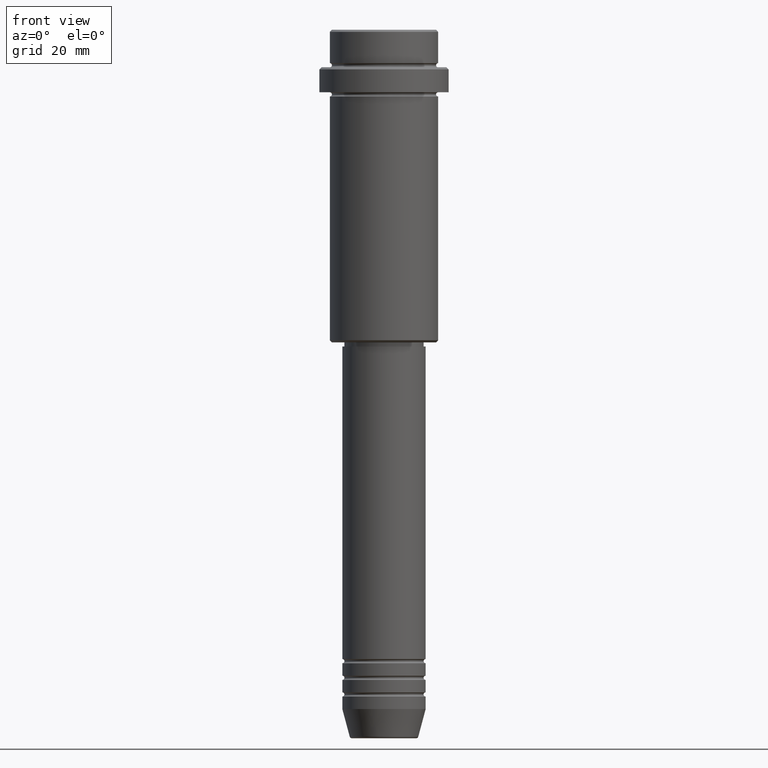
[diagram: clean part render]
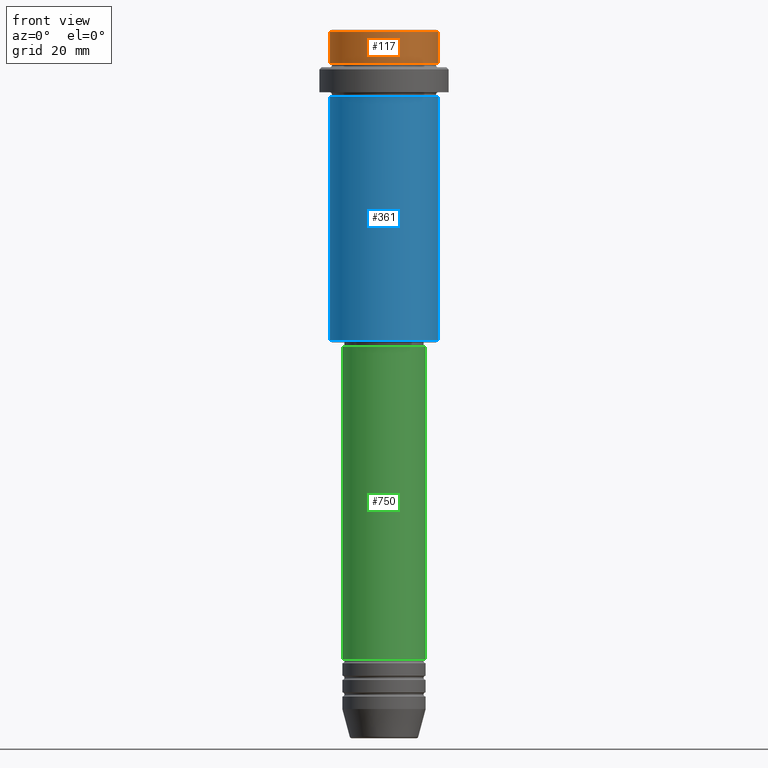
[diagram: same view with three faces highlighted in distinct colors, each labeled with its STEP entity id]
A machine part, front view with three faces highlighted in distinct colors.
Their STEP definitions:

[orange] entity #117 — the highlighted cylindrical surface (partial cylindrical patch) has radius 13 mm, axis along (-0, -0, 1).
#18 = CARTESIAN_POINT ( 'NONE',  ( 12.99999999999999822, 0.000000000000000000, 0.000000000000000000 ) ) ;
#31 = DIRECTION ( 'NONE',  ( -0.000000000000000000, -0.000000000000000000, 1.000000000000000000 ) ) ;
#90 = ORIENTED_EDGE ( 'NONE', *, *, #198, .T. ) ;
#115 = CARTESIAN_POINT ( 'NONE',  ( 0.000000000000000000, 0.000000000000000000, -0.4999999999999483746 ) ) ;
#117 = ADVANCED_FACE ( 'NONE', ( #295 ), #1174, .T. ) ;
#193 = DIRECTION ( 'NONE',  ( 1.000000000000000000, 0.000000000000000000, 0.000000000000000000 ) ) ;
#198 = EDGE_CURVE ( 'NONE', #1146, #933, #409, .T. ) ;
#295 = FACE_OUTER_BOUND ( 'NONE', #569, .T. ) ;
#409 = CIRCLE ( 'NONE', #968, 12.99999999999999822 ) ;
#432 = CARTESIAN_POINT ( 'NONE',  ( -12.99999999999999822, 1.592040838891558898E-15, -7.999999999999998224 ) ) ;
#483 = VERTEX_POINT ( 'NONE', #595 ) ;
#506 = DIRECTION ( 'NONE',  ( -0.000000000000000000, -0.000000000000000000, 1.000000000000000000 ) ) ;
#535 = DIRECTION ( 'NONE',  ( -0.000000000000000000, -0.000000000000000000, 1.000000000000000000 ) ) ;
#569 = EDGE_LOOP ( 'NONE', ( #649, #1130, #924, #90 ) ) ;
#573 = CARTESIAN_POINT ( 'NONE',  ( -12.99999999999999822, 1.592040838891558898E-15, -0.4999999999999483746 ) ) ;
#595 = CARTESIAN_POINT ( 'NONE',  ( 12.99999999999999822, 0.000000000000000000, -7.999999999999998224 ) ) ;
#612 = AXIS2_PLACEMENT_3D ( 'NONE', #955, #733, #193 ) ;
#649 = ORIENTED_EDGE ( 'NONE', *, *, #1270, .F. ) ;
#656 = CARTESIAN_POINT ( 'NONE',  ( -12.99999999999999822, 1.592040838891558898E-15, 0.000000000000000000 ) ) ;
#699 = AXIS2_PLACEMENT_3D ( 'NONE', #834, #506, #742 ) ;
#700 = VECTOR ( 'NONE', #535, 1000.000000000000000 ) ;
#723 = VERTEX_POINT ( 'NONE', #432 ) ;
#733 = DIRECTION ( 'NONE',  ( -0.000000000000000000, -0.000000000000000000, 1.000000000000000000 ) ) ;
#742 = DIRECTION ( 'NONE',  ( 1.000000000000000000, 0.000000000000000000, 0.000000000000000000 ) ) ;
#767 = EDGE_CURVE ( 'NONE', #483, #1146, #1004, .T. ) ;
#834 = CARTESIAN_POINT ( 'NONE',  ( 0.000000000000000000, 0.000000000000000000, -7.999999999999998224 ) ) ;
#924 = ORIENTED_EDGE ( 'NONE', *, *, #767, .T. ) ;
#933 = VERTEX_POINT ( 'NONE', #573 ) ;
#952 = DIRECTION ( 'NONE',  ( 1.000000000000000000, 0.000000000000000000, 0.000000000000000000 ) ) ;
#955 = CARTESIAN_POINT ( 'NONE',  ( 0.000000000000000000, 0.000000000000000000, 0.000000000000000000 ) ) ;
#968 = AXIS2_PLACEMENT_3D ( 'NONE', #115, #1366, #952 ) ;
#1004 = LINE ( 'NONE', #18, #1240 ) ;
#1051 = EDGE_CURVE ( 'NONE', #723, #483, #1194, .T. ) ;
#1130 = ORIENTED_EDGE ( 'NONE', *, *, #1051, .T. ) ;
#1146 = VERTEX_POINT ( 'NONE', #1193 ) ;
#1174 = CYLINDRICAL_SURFACE ( 'NONE', #612, 12.99999999999999822 ) ;
#1193 = CARTESIAN_POINT ( 'NONE',  ( 12.99999999999999822, 0.000000000000000000, -0.4999999999999483746 ) ) ;
#1194 = CIRCLE ( 'NONE', #699, 12.99999999999999822 ) ;
#1240 = VECTOR ( 'NONE', #31, 1000.000000000000000 ) ;
#1270 = EDGE_CURVE ( 'NONE', #723, #933, #1307, .T. ) ;
#1307 = LINE ( 'NONE', #656, #700 ) ;
#1366 = DIRECTION ( 'NONE',  ( 0.000000000000000000, 0.000000000000000000, -1.000000000000000000 ) ) ;

[blue] entity #361 — the highlighted cylindrical surface (partial cylindrical patch) has radius 13 mm, axis along (-0, -0, 1).
#10 = CARTESIAN_POINT ( 'NONE',  ( 13.00000000000000000, 0.000000000000000000, 0.000000000000000000 ) ) ;
#37 = DIRECTION ( 'NONE',  ( -0.000000000000000000, -0.000000000000000000, 1.000000000000000000 ) ) ;
#71 = CARTESIAN_POINT ( 'NONE',  ( 13.00000000000000000, 0.000000000000000000, -74.50000000000001421 ) ) ;
#78 = FACE_OUTER_BOUND ( 'NONE', #659, .T. ) ;
#91 = CARTESIAN_POINT ( 'NONE',  ( -13.00000000000000000, 1.592040838891559095E-15, 0.000000000000000000 ) ) ;
#107 = CARTESIAN_POINT ( 'NONE',  ( 13.00000000000000000, 0.000000000000000000, -16.00000000000000000 ) ) ;
#142 = CARTESIAN_POINT ( 'NONE',  ( 0.000000000000000000, 0.000000000000000000, -16.00000000000000000 ) ) ;
#166 = EDGE_CURVE ( 'NONE', #823, #868, #292, .T. ) ;
#181 = AXIS2_PLACEMENT_3D ( 'NONE', #1088, #965, #1062 ) ;
#266 = CIRCLE ( 'NONE', #959, 13.00000000000000000 ) ;
#290 = DIRECTION ( 'NONE',  ( 1.000000000000000000, 0.000000000000000000, 0.000000000000000000 ) ) ;
#292 = LINE ( 'NONE', #91, #1061 ) ;
#331 = ORIENTED_EDGE ( 'NONE', *, *, #166, .F. ) ;
#361 = ADVANCED_FACE ( 'NONE', ( #78 ), #843, .T. ) ;
#456 = CARTESIAN_POINT ( 'NONE',  ( -13.00000000000000000, 1.592040838891559095E-15, -74.50000000000001421 ) ) ;
#492 = DIRECTION ( 'NONE',  ( 1.000000000000000000, 0.000000000000000000, 0.000000000000000000 ) ) ;
#505 = CARTESIAN_POINT ( 'NONE',  ( 0.000000000000000000, 0.000000000000000000, 0.000000000000000000 ) ) ;
#517 = DIRECTION ( 'NONE',  ( -0.000000000000000000, -0.000000000000000000, 1.000000000000000000 ) ) ;
#547 = VERTEX_POINT ( 'NONE', #71 ) ;
#611 = ORIENTED_EDGE ( 'NONE', *, *, #964, .F. ) ;
#648 = CARTESIAN_POINT ( 'NONE',  ( -13.00000000000000000, 1.592040838891559095E-15, -16.00000000000000000 ) ) ;
#659 = EDGE_LOOP ( 'NONE', ( #331, #1128, #703, #611 ) ) ;
#669 = LINE ( 'NONE', #10, #846 ) ;
#703 = ORIENTED_EDGE ( 'NONE', *, *, #1251, .T. ) ;
#719 = CIRCLE ( 'NONE', #181, 13.00000000000000000 ) ;
#823 = VERTEX_POINT ( 'NONE', #456 ) ;
#839 = DIRECTION ( 'NONE',  ( -0.000000000000000000, -0.000000000000000000, 1.000000000000000000 ) ) ;
#843 = CYLINDRICAL_SURFACE ( 'NONE', #1036, 13.00000000000000000 ) ;
#846 = VECTOR ( 'NONE', #1212, 1000.000000000000000 ) ;
#868 = VERTEX_POINT ( 'NONE', #648 ) ;
#959 = AXIS2_PLACEMENT_3D ( 'NONE', #142, #37, #492 ) ;
#964 = EDGE_CURVE ( 'NONE', #868, #1216, #266, .T. ) ;
#965 = DIRECTION ( 'NONE',  ( -0.000000000000000000, -0.000000000000000000, 1.000000000000000000 ) ) ;
#1036 = AXIS2_PLACEMENT_3D ( 'NONE', #505, #839, #290 ) ;
#1061 = VECTOR ( 'NONE', #517, 1000.000000000000000 ) ;
#1062 = DIRECTION ( 'NONE',  ( -1.000000000000000000, 0.000000000000000000, 0.000000000000000000 ) ) ;
#1088 = CARTESIAN_POINT ( 'NONE',  ( 0.000000000000000000, 0.000000000000000000, -74.50000000000001421 ) ) ;
#1128 = ORIENTED_EDGE ( 'NONE', *, *, #1164, .T. ) ;
#1164 = EDGE_CURVE ( 'NONE', #823, #547, #719, .T. ) ;
#1212 = DIRECTION ( 'NONE',  ( -0.000000000000000000, -0.000000000000000000, 1.000000000000000000 ) ) ;
#1216 = VERTEX_POINT ( 'NONE', #107 ) ;
#1251 = EDGE_CURVE ( 'NONE', #547, #1216, #669, .T. ) ;

[green] entity #750 — the highlighted cylindrical surface (partial cylindrical patch) has radius 10 mm, axis along (-0, -0, 1).
#45 = VECTOR ( 'NONE', #1215, 1000.000000000000000 ) ;
#92 = DIRECTION ( 'NONE',  ( -0.000000000000000000, -0.000000000000000000, 1.000000000000000000 ) ) ;
#135 = FACE_OUTER_BOUND ( 'NONE', #1335, .T. ) ;
#222 = CIRCLE ( 'NONE', #698, 10.00000000000000000 ) ;
#236 = DIRECTION ( 'NONE',  ( -0.000000000000000000, -0.000000000000000000, 1.000000000000000000 ) ) ;
#269 = AXIS2_PLACEMENT_3D ( 'NONE', #1050, #275, #1021 ) ;
#271 = CARTESIAN_POINT ( 'NONE',  ( -10.00000000000000000, 1.224646799147353256E-15, -150.9999999999999147 ) ) ;
#275 = DIRECTION ( 'NONE',  ( -0.000000000000000000, -0.000000000000000000, 1.000000000000000000 ) ) ;
#330 = CARTESIAN_POINT ( 'NONE',  ( 10.00000000000000178, 0.000000000000000000, 0.000000000000000000 ) ) ;
#380 = VECTOR ( 'NONE', #930, 1000.000000000000000 ) ;
#425 = EDGE_CURVE ( 'NONE', #709, #1095, #1329, .T. ) ;
#461 = LINE ( 'NONE', #1018, #380 ) ;
#574 = ORIENTED_EDGE ( 'NONE', *, *, #837, .T. ) ;
#620 = EDGE_CURVE ( 'NONE', #1352, #1239, #222, .T. ) ;
#657 = CYLINDRICAL_SURFACE ( 'NONE', #1167, 10.00000000000000178 ) ;
#672 = ORIENTED_EDGE ( 'NONE', *, *, #620, .T. ) ;
#698 = AXIS2_PLACEMENT_3D ( 'NONE', #1304, #92, #1409 ) ;
#709 = VERTEX_POINT ( 'NONE', #1173 ) ;
#750 = ADVANCED_FACE ( 'NONE', ( #135 ), #657, .T. ) ;
#798 = ORIENTED_EDGE ( 'NONE', *, *, #425, .F. ) ;
#837 = EDGE_CURVE ( 'NONE', #1239, #1095, #994, .T. ) ;
#930 = DIRECTION ( 'NONE',  ( -0.000000000000000000, -0.000000000000000000, 1.000000000000000000 ) ) ;
#953 = CARTESIAN_POINT ( 'NONE',  ( 10.00000000000000178, 0.000000000000000000, -76.00000000000001421 ) ) ;
#983 = DIRECTION ( 'NONE',  ( 1.000000000000000000, 0.000000000000000000, 0.000000000000000000 ) ) ;
#994 = LINE ( 'NONE', #330, #45 ) ;
#1018 = CARTESIAN_POINT ( 'NONE',  ( -10.00000000000000178, 1.224646799147353454E-15, 0.000000000000000000 ) ) ;
#1021 = DIRECTION ( 'NONE',  ( 1.000000000000000000, 0.000000000000000000, 0.000000000000000000 ) ) ;
#1050 = CARTESIAN_POINT ( 'NONE',  ( 0.000000000000000000, 0.000000000000000000, -76.00000000000001421 ) ) ;
#1095 = VERTEX_POINT ( 'NONE', #953 ) ;
#1117 = CARTESIAN_POINT ( 'NONE',  ( 10.00000000000000000, 0.000000000000000000, -150.9999999999999147 ) ) ;
#1167 = AXIS2_PLACEMENT_3D ( 'NONE', #1316, #236, #983 ) ;
#1173 = CARTESIAN_POINT ( 'NONE',  ( -10.00000000000000178, 1.224646799147353454E-15, -76.00000000000001421 ) ) ;
#1215 = DIRECTION ( 'NONE',  ( -0.000000000000000000, -0.000000000000000000, 1.000000000000000000 ) ) ;
#1239 = VERTEX_POINT ( 'NONE', #1117 ) ;
#1304 = CARTESIAN_POINT ( 'NONE',  ( 0.000000000000000000, 0.000000000000000000, -150.9999999999999147 ) ) ;
#1316 = CARTESIAN_POINT ( 'NONE',  ( 0.000000000000000000, 0.000000000000000000, 0.000000000000000000 ) ) ;
#1329 = CIRCLE ( 'NONE', #269, 10.00000000000000178 ) ;
#1335 = EDGE_LOOP ( 'NONE', ( #1407, #672, #574, #798 ) ) ;
#1352 = VERTEX_POINT ( 'NONE', #271 ) ;
#1395 = EDGE_CURVE ( 'NONE', #1352, #709, #461, .T. ) ;
#1407 = ORIENTED_EDGE ( 'NONE', *, *, #1395, .F. ) ;
#1409 = DIRECTION ( 'NONE',  ( 1.000000000000000000, 0.000000000000000000, 0.000000000000000000 ) ) ;